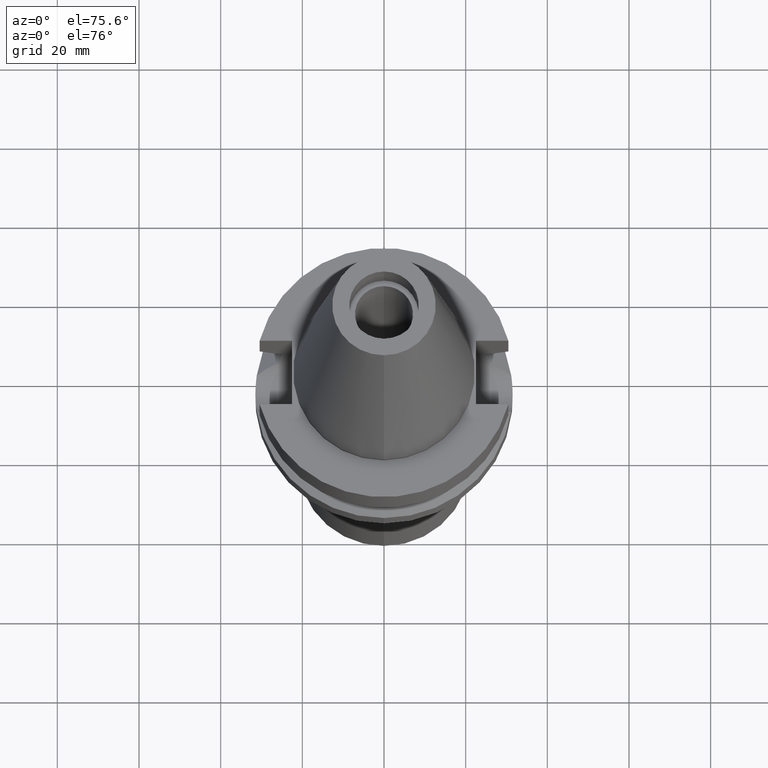
[diagram: clean part render]
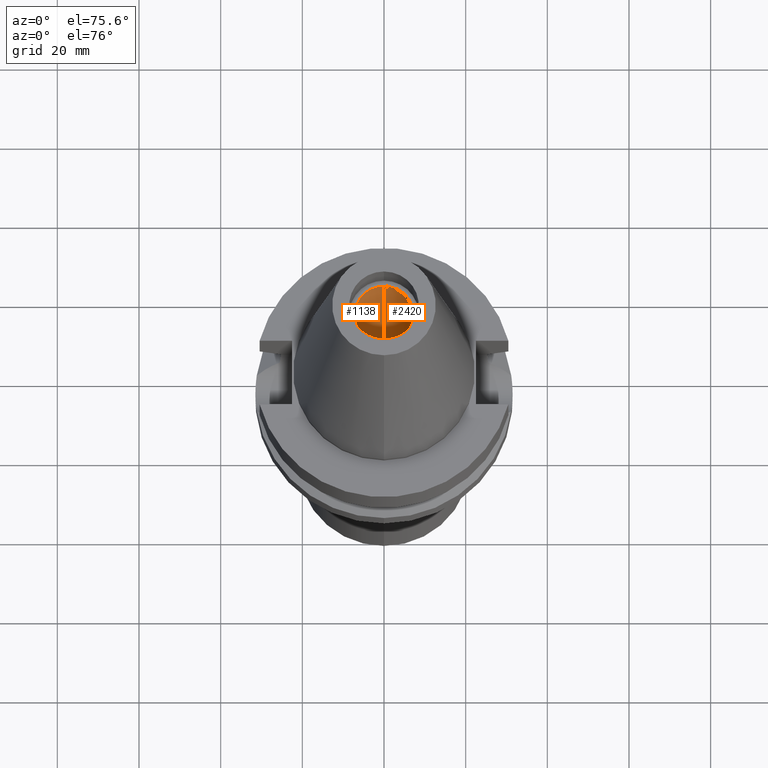
[diagram: same view with one multi-face feature highlighted, each face labeled with its STEP entity id]
A machine part, auxiliary view. The highlighted faces form ONE feature: a constant-radius fillet chain: 2 tangent blend faces with common blend radius 7.1 mm. The faces share edges in the B-rep.
Their STEP definitions:
[1] entity #1138 (Cylinder):
#109 = CARTESIAN_POINT ( 'NONE',  ( 0.0000000000000000000, 7.100000000000000533, -5.684341886080998387E-14 ) ) ;
#121 = CARTESIAN_POINT ( 'NONE',  ( 0.0000000000000000000, 2.116128436586999977E-14, -5.684341886080998387E-14 ) ) ;
#279 = CIRCLE ( 'NONE', #2682, 7.100000000000000533 ) ;
#345 = DIRECTION ( 'NONE',  ( 0.0000000000000000000, 0.0000000000000000000, -1.000000000000000000 ) ) ;
#464 = LINE ( 'NONE', #1936, #480 ) ;
#480 = VECTOR ( 'NONE', #2618, 1000.000000000000000 ) ;
#525 = CARTESIAN_POINT ( 'NONE',  ( 0.0000000000000000000, -7.100000000000000533, -5.684341886080998387E-14 ) ) ;
#537 = ORIENTED_EDGE ( 'NONE', *, *, #2664, .F. ) ;
#624 = CYLINDRICAL_SURFACE ( 'NONE', #2061, 7.100000000000000533 ) ;
#709 = CARTESIAN_POINT ( 'NONE',  ( 0.0000000000000000000, -7.100000000000000533, 56.39999999999999858 ) ) ;
#736 = CARTESIAN_POINT ( 'NONE',  ( 0.0000000000000000000, 7.100000000000000533, 56.39999999999999858 ) ) ;
#1083 = FACE_OUTER_BOUND ( 'NONE', #2212, .T. ) ;
#1102 = EDGE_CURVE ( 'NONE', #2430, #2037, #279, .T. ) ;
#1138 = ADVANCED_FACE ( 'NONE', ( #1083 ), #624, .F. ) ;
#1211 = VECTOR ( 'NONE', #1849, 1000.000000000000000 ) ;
#1361 = VERTEX_POINT ( 'NONE', #736 ) ;
#1595 = ORIENTED_EDGE ( 'NONE', *, *, #1102, .T. ) ;
#1624 = CARTESIAN_POINT ( 'NONE',  ( 0.0000000000000000000, 7.100000000000000533, -5.684341886080998387E-14 ) ) ;
#1645 = DIRECTION ( 'NONE',  ( 0.0000000000000000000, 1.000000000000000000, 0.0000000000000000000 ) ) ;
#1814 = EDGE_CURVE ( 'NONE', #1361, #2599, #1967, .T. ) ;
#1849 = DIRECTION ( 'NONE',  ( 0.0000000000000000000, 0.0000000000000000000, 1.000000000000000000 ) ) ;
#1936 = CARTESIAN_POINT ( 'NONE',  ( 0.0000000000000000000, -7.100000000000000533, -5.684341886080998387E-14 ) ) ;
#1967 = CIRCLE ( 'NONE', #2118, 7.100000000000000533 ) ;
#2037 = VERTEX_POINT ( 'NONE', #1624 ) ;
#2042 = CARTESIAN_POINT ( 'NONE',  ( 0.0000000000000000000, 2.116128436586999977E-14, 72.79500000000000171 ) ) ;
#2061 = AXIS2_PLACEMENT_3D ( 'NONE', #2042, #3021, #2785 ) ;
#2063 = DIRECTION ( 'NONE',  ( 0.0000000000000000000, -1.000000000000000000, 0.0000000000000000000 ) ) ;
#2085 = EDGE_CURVE ( 'NONE', #2037, #1361, #3078, .T. ) ;
#2118 = AXIS2_PLACEMENT_3D ( 'NONE', #2124, #2856, #1645 ) ;
#2124 = CARTESIAN_POINT ( 'NONE',  ( 0.0000000000000000000, 2.116128436586999977E-14, 56.39999999999999858 ) ) ;
#2138 = ORIENTED_EDGE ( 'NONE', *, *, #1814, .T. ) ;
#2212 = EDGE_LOOP ( 'NONE', ( #2138, #537, #1595, #2690 ) ) ;
#2430 = VERTEX_POINT ( 'NONE', #525 ) ;
#2599 = VERTEX_POINT ( 'NONE', #709 ) ;
#2618 = DIRECTION ( 'NONE',  ( 0.0000000000000000000, 0.0000000000000000000, 1.000000000000000000 ) ) ;
#2664 = EDGE_CURVE ( 'NONE', #2430, #2599, #464, .T. ) ;
#2682 = AXIS2_PLACEMENT_3D ( 'NONE', #121, #345, #2063 ) ;
#2690 = ORIENTED_EDGE ( 'NONE', *, *, #2085, .T. ) ;
#2785 = DIRECTION ( 'NONE',  ( 0.0000000000000000000, -1.000000000000000000, 0.0000000000000000000 ) ) ;
#2856 = DIRECTION ( 'NONE',  ( 0.0000000000000000000, 0.0000000000000000000, 1.000000000000000000 ) ) ;
#3021 = DIRECTION ( 'NONE',  ( 0.0000000000000000000, 0.0000000000000000000, -1.000000000000000000 ) ) ;
#3078 = LINE ( 'NONE', #109, #1211 ) ;
[2] entity #2420 (Cylinder):
#6 = DIRECTION ( 'NONE',  ( 0.0000000000000000000, 0.0000000000000000000, 1.000000000000000000 ) ) ;
#29 = ORIENTED_EDGE ( 'NONE', *, *, #1576, .T. ) ;
#59 = DIRECTION ( 'NONE',  ( 0.0000000000000000000, -1.000000000000000000, 0.0000000000000000000 ) ) ;
#81 = CARTESIAN_POINT ( 'NONE',  ( 0.0000000000000000000, 2.116128436586999977E-14, 72.79500000000000171 ) ) ;
#109 = CARTESIAN_POINT ( 'NONE',  ( 0.0000000000000000000, 7.100000000000000533, -5.684341886080998387E-14 ) ) ;
#163 = ORIENTED_EDGE ( 'NONE', *, *, #2664, .T. ) ;
#459 = ORIENTED_EDGE ( 'NONE', *, *, #2085, .F. ) ;
#464 = LINE ( 'NONE', #1936, #480 ) ;
#480 = VECTOR ( 'NONE', #2618, 1000.000000000000000 ) ;
#525 = CARTESIAN_POINT ( 'NONE',  ( 0.0000000000000000000, -7.100000000000000533, -5.684341886080998387E-14 ) ) ;
#709 = CARTESIAN_POINT ( 'NONE',  ( 0.0000000000000000000, -7.100000000000000533, 56.39999999999999858 ) ) ;
#736 = CARTESIAN_POINT ( 'NONE',  ( 0.0000000000000000000, 7.100000000000000533, 56.39999999999999858 ) ) ;
#815 = CARTESIAN_POINT ( 'NONE',  ( 0.0000000000000000000, 2.116128436586999977E-14, 56.39999999999999858 ) ) ;
#1207 = AXIS2_PLACEMENT_3D ( 'NONE', #815, #1777, #1790 ) ;
#1211 = VECTOR ( 'NONE', #1849, 1000.000000000000000 ) ;
#1272 = CARTESIAN_POINT ( 'NONE',  ( 0.0000000000000000000, 2.116128436586999977E-14, -5.684341886080998387E-14 ) ) ;
#1361 = VERTEX_POINT ( 'NONE', #736 ) ;
#1400 = CIRCLE ( 'NONE', #2201, 7.100000000000000533 ) ;
#1576 = EDGE_CURVE ( 'NONE', #2599, #1361, #2264, .T. ) ;
#1624 = CARTESIAN_POINT ( 'NONE',  ( 0.0000000000000000000, 7.100000000000000533, -5.684341886080998387E-14 ) ) ;
#1722 = CYLINDRICAL_SURFACE ( 'NONE', #1851, 7.100000000000000533 ) ;
#1732 = DIRECTION ( 'NONE',  ( 0.0000000000000000000, -1.000000000000000000, 0.0000000000000000000 ) ) ;
#1769 = FACE_OUTER_BOUND ( 'NONE', #2074, .T. ) ;
#1777 = DIRECTION ( 'NONE',  ( 0.0000000000000000000, 0.0000000000000000000, 1.000000000000000000 ) ) ;
#1790 = DIRECTION ( 'NONE',  ( 0.0000000000000000000, -1.000000000000000000, 0.0000000000000000000 ) ) ;
#1825 = ORIENTED_EDGE ( 'NONE', *, *, #2883, .F. ) ;
#1849 = DIRECTION ( 'NONE',  ( 0.0000000000000000000, 0.0000000000000000000, 1.000000000000000000 ) ) ;
#1851 = AXIS2_PLACEMENT_3D ( 'NONE', #81, #2237, #59 ) ;
#1936 = CARTESIAN_POINT ( 'NONE',  ( 0.0000000000000000000, -7.100000000000000533, -5.684341886080998387E-14 ) ) ;
#2037 = VERTEX_POINT ( 'NONE', #1624 ) ;
#2074 = EDGE_LOOP ( 'NONE', ( #1825, #163, #29, #459 ) ) ;
#2085 = EDGE_CURVE ( 'NONE', #2037, #1361, #3078, .T. ) ;
#2201 = AXIS2_PLACEMENT_3D ( 'NONE', #1272, #6, #1732 ) ;
#2237 = DIRECTION ( 'NONE',  ( 0.0000000000000000000, 0.0000000000000000000, -1.000000000000000000 ) ) ;
#2264 = CIRCLE ( 'NONE', #1207, 7.100000000000000533 ) ;
#2420 = ADVANCED_FACE ( 'NONE', ( #1769 ), #1722, .F. ) ;
#2430 = VERTEX_POINT ( 'NONE', #525 ) ;
#2599 = VERTEX_POINT ( 'NONE', #709 ) ;
#2618 = DIRECTION ( 'NONE',  ( 0.0000000000000000000, 0.0000000000000000000, 1.000000000000000000 ) ) ;
#2664 = EDGE_CURVE ( 'NONE', #2430, #2599, #464, .T. ) ;
#2883 = EDGE_CURVE ( 'NONE', #2430, #2037, #1400, .T. ) ;
#3078 = LINE ( 'NONE', #109, #1211 ) ;